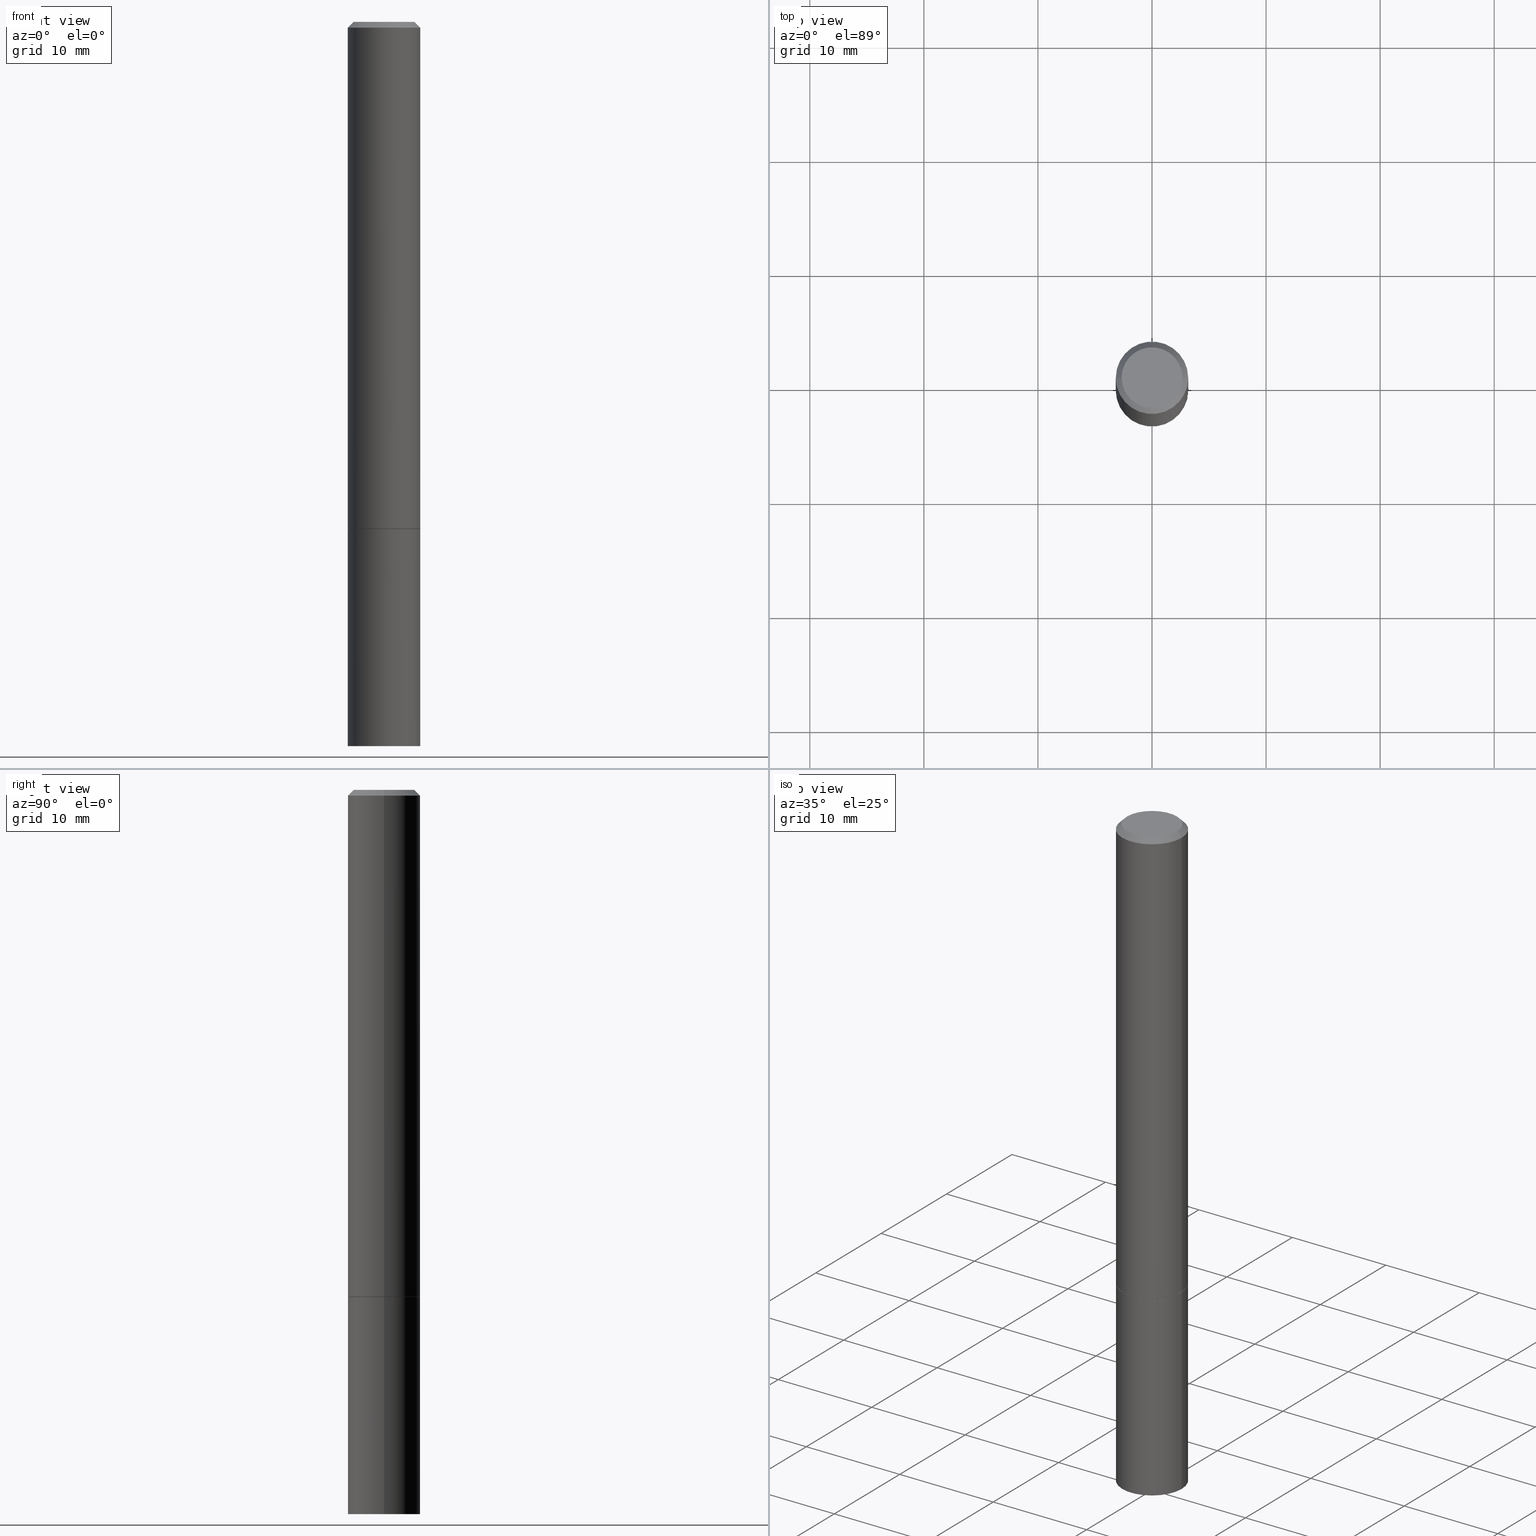
[diagram: canonical four-view strip — front | top / right | iso, engineering-drawing reading convention]
A machine part, canonical four-view strip (front | top / right | iso — engineering-drawing reading convention). The complete STEP part file that produces these views, byte-faithful:
ISO-10303-21;
HEADER;
FILE_DESCRIPTION (( 'STEP AP203' ),
    '1' );
FILE_NAME ('30531.STEP',
    '2024-02-27T12:44:12',
    ( '' ),
    ( '' ),
    'SwSTEP 2.0',
    'SolidWorks 2023',
    '' );
FILE_SCHEMA (( 'CONFIG_CONTROL_DESIGN' ));
ENDSEC;

DATA;
#1 = DIRECTION ( 'NONE',  ( -2.445468806185136597E-29, 3.491481338843145583E-15, 1.000000000000000000 ) ) ;
#2 = CARTESIAN_POINT ( 'NONE',  ( 4.890937612370283668E-31, -6.982962677686305168E-17, -0.02000000000000004205 ) ) ;
#3 = EDGE_CURVE ( 'NONE', #115, #113, #151, .T. ) ;
#4 = CALENDAR_DATE ( 2024, 27, 2 ) ;
#5 = EDGE_LOOP ( 'NONE', ( #9, #150, #288, #257 ) ) ;
#6 = AXIS2_PLACEMENT_3D ( 'NONE', #2, #294, #53 ) ;
#7 = LINE ( 'NONE', #84, #292 ) ;
#8 = APPROVAL_STATUS ( 'not_yet_approved' ) ;
#9 = ORIENTED_EDGE ( 'NONE', *, *, #74, .F. ) ;
#10 = FACE_OUTER_BOUND ( 'NONE', #170, .T. ) ;
#11 = DIRECTION ( 'NONE',  ( 1.000000000000000000, -6.982962677686262766E-15, 0.000000000000000000 ) ) ;
#12 = EDGE_LOOP ( 'NONE', ( #56, #39, #87, #34 ) ) ;
#13 = DIRECTION ( 'NONE',  ( 2.438088387897960049E-29, -3.491481338843145188E-15, -1.000000000000000000 ) ) ;
#14 = FACE_OUTER_BOUND ( 'NONE', #258, .T. ) ;
#15 = AXIS2_PLACEMENT_3D ( 'NONE', #36, #265, #140 ) ;
#16 = APPROVAL_PERSON_ORGANIZATION ( #246, #266, #184 ) ;
#17 = DIRECTION ( 'NONE',  ( 1.000000000000000000, -6.982962677686266711E-15, 4.876176775795935793E-29 ) ) ;
#18 = DIRECTION ( 'NONE',  ( -2.445468806185136597E-29, 3.491481338843145583E-15, 1.000000000000000000 ) ) ;
#19 = CONICAL_SURFACE ( 'NONE', #119, 0.1249999999999997780, 0.7853981633974471688 ) ;
#20 = FACE_OUTER_BOUND ( 'NONE', #5, .T. ) ;
#21 = CARTESIAN_POINT ( 'NONE',  ( 4.890937612370283668E-31, -6.982962677686305168E-17, -0.02000000000000004205 ) ) ;
#22 = VERTEX_POINT ( 'NONE', #287 ) ;
#23 = AXIS2_PLACEMENT_3D ( 'NONE', #199, #28, #55 ) ;
#24 = VERTEX_POINT ( 'NONE', #145 ) ;
#25 = DATE_AND_TIME ( #282, #178 ) ;
#26 = CONICAL_SURFACE ( 'NONE', #6, 0.1249999999999997780, 0.7853981633974471688 ) ;
#27 = DIRECTION ( 'NONE',  ( 1.000000000000000000, -6.982962677686270655E-15, 0.000000000000000000 ) ) ;
#28 = DIRECTION ( 'NONE',  ( 2.438088387897960049E-29, -3.491481338843145188E-15, -1.000000000000000000 ) ) ;
#29 = FACE_OUTER_BOUND ( 'NONE', #12, .T. ) ;
#30 = VERTEX_POINT ( 'NONE', #197 ) ;
#31 = CC_DESIGN_PERSON_AND_ORGANIZATION_ASSIGNMENT ( #274, #131, ( #296 ) ) ;
#32 = ORIENTED_EDGE ( 'NONE', *, *, #162, .T. ) ;
#33 = ORIENTED_EDGE ( 'NONE', *, *, #249, .F. ) ;
#34 = ORIENTED_EDGE ( 'NONE', *, *, #101, .T. ) ;
#35 = AXIS2_PLACEMENT_3D ( 'NONE', #146, #169, #11 ) ;
#36 = CARTESIAN_POINT ( 'NONE',  ( 0.000000000000000000, 0.000000000000000000, 0.000000000000000000 ) ) ;
#37 = LOCAL_TIME ( 7, 44, 12.00000000000000000, #102 ) ;
#38 = DIRECTION ( 'NONE',  ( -2.445468806185136597E-29, 3.491481338843145583E-15, 1.000000000000000000 ) ) ;
#39 = ORIENTED_EDGE ( 'NONE', *, *, #152, .F. ) ;
#40 = DIRECTION ( 'NONE',  ( -2.445468806185136597E-29, 3.491481338843145583E-15, 1.000000000000000000 ) ) ;
#41 = PRODUCT_DEFINITION_SHAPE ( 'NONE', 'NONE',  #123 ) ;
#42 = AXIS2_PLACEMENT_3D ( 'NONE', #21, #18, #136 ) ;
#43 = AXIS2_PLACEMENT_3D ( 'NONE', #117, #342, #225 ) ;
#44 = FACE_OUTER_BOUND ( 'NONE', #268, .T. ) ;
#45 = APPROVAL_DATE_TIME ( #298, #209 ) ;
#46 = DIRECTION ( 'NONE',  ( -2.438088387897960049E-29, 3.491481338843145188E-15, 1.000000000000000000 ) ) ;
#47 = EDGE_CURVE ( 'NONE', #24, #242, #167, .T. ) ;
#48 = CALENDAR_DATE ( 2024, 27, 2 ) ;
#49 = ADVANCED_FACE ( 'NONE', ( #10 ), #142, .F. ) ;
#50 = LOCAL_TIME ( 7, 44, 12.00000000000000000, #143 ) ;
#51 = APPROVAL_DATE_TIME ( #188, #266 ) ;
#52 = PERSON ( 'UNSPECIFIED', 'UNSPECIFIED', 'UNSPECIFIED', ('UNSPECIFIED'), ('UNSPECIFIED'), ('UNSPECIFIED') ) ;
#53 = DIRECTION ( 'NONE',  ( -1.000000000000000000, 6.982962677686266711E-15, 0.000000000000000000 ) ) ;
#54 = MECHANICAL_CONTEXT ( 'NONE', #104, 'mechanical' ) ;
#55 = DIRECTION ( 'NONE',  ( -1.000000000000000000, 6.982962677686265922E-15, -4.876176775795935793E-29 ) ) ;
#56 = ORIENTED_EDGE ( 'NONE', *, *, #3, .F. ) ;
#57 = CC_DESIGN_SECURITY_CLASSIFICATION ( #70, ( #296 ) ) ;
#58 = DIRECTION ( 'NONE',  ( -2.445468806185136877E-29, 3.491481338843145188E-15, 1.000000000000000000 ) ) ;
#59 = EDGE_LOOP ( 'NONE', ( #313, #193, #348, #215 ) ) ;
#60 = DIRECTION ( 'NONE',  ( -2.445468806185136597E-29, 3.491481338843145583E-15, 1.000000000000000000 ) ) ;
#61 = CARTESIAN_POINT ( 'NONE',  ( 0.1250000000000000000, -9.601573681818648281E-15, -2.500000000000000000 ) ) ;
#62 = EDGE_CURVE ( 'NONE', #359, #113, #7, .T. ) ;
#63 = DIRECTION ( 'NONE',  ( -2.445468806185136597E-29, 3.491481338843145583E-15, 1.000000000000000000 ) ) ;
#64 = CC_DESIGN_APPROVAL ( #266, ( #70 ) ) ;
#65 = CC_DESIGN_DATE_AND_TIME_ASSIGNMENT ( #89, #175, ( #123 ) ) ;
#66 = CALENDAR_DATE ( 2024, 27, 2 ) ;
#67 = PRODUCT ( '30531', '30531', '', ( #54 ) ) ;
#68 = FACE_OUTER_BOUND ( 'NONE', #85, .T. ) ;
#69 = AXIS2_PLACEMENT_3D ( 'NONE', #366, #293, #290 ) ;
#70 = SECURITY_CLASSIFICATION ( '', '', #239 ) ;
#71 = ORIENTED_EDGE ( 'NONE', *, *, #138, .F. ) ;
#72 = CARTESIAN_POINT ( 'NONE',  ( 4.279570410823989044E-29, -6.110092342975505460E-15, -1.750000000000000222 ) ) ;
#73 = CARTESIAN_POINT ( 'NONE',  ( 0.000000000000000000, 0.000000000000000000, 0.000000000000000000 ) ) ;
#74 = EDGE_CURVE ( 'NONE', #22, #120, #114, .T. ) ;
#75 = APPROVAL_STATUS ( 'not_yet_approved' ) ;
#76 = ORIENTED_EDGE ( 'NONE', *, *, #272, .F. ) ;
#77 = AXIS2_PLACEMENT_3D ( 'NONE', #204, #63, #27 ) ;
#78 = ORIENTED_EDGE ( 'NONE', *, *, #181, .F. ) ;
#79 = CARTESIAN_POINT ( 'NONE',  ( 0.000000000000000000, 0.000000000000000000, 0.000000000000000000 ) ) ;
#80 = CALENDAR_DATE ( 2024, 27, 2 ) ;
#81 = ORIENTED_EDGE ( 'NONE', *, *, #144, .T. ) ;
#82 = ORIENTED_EDGE ( 'NONE', *, *, #135, .T. ) ;
#83 = DIRECTION ( 'NONE',  ( -2.445468806185136597E-29, 3.491481338843145583E-15, 1.000000000000000000 ) ) ;
#84 = CARTESIAN_POINT ( 'NONE',  ( 0.1249999999999999029, -8.728703347107826486E-16, 6.095220969744914837E-30 ) ) ;
#85 = EDGE_LOOP ( 'NONE', ( #310, #124 ) ) ;
#86 = VECTOR ( 'NONE', #322, 39.37007874015748854 ) ;
#87 = ORIENTED_EDGE ( 'NONE', *, *, #47, .T. ) ;
#88 = CARTESIAN_POINT ( 'NONE',  ( 6.113672015462842613E-29, -8.728703347107864943E-15, -2.500000000000000000 ) ) ;
#89 = DATE_AND_TIME ( #4, #50 ) ;
#90 = DIRECTION ( 'NONE',  ( 2.438088387897960049E-29, -3.491481338843145188E-15, -1.000000000000000000 ) ) ;
#91 = ORIENTED_EDGE ( 'NONE', *, *, #351, .F. ) ;
#92 = DIRECTION ( 'NONE',  ( 1.000000000000000000, -6.982962677686270655E-15, 0.000000000000000000 ) ) ;
#93 = CARTESIAN_POINT ( 'NONE',  ( 4.277124942017804562E-29, -6.106600861636661664E-15, -1.749000000000000110 ) ) ;
#94 = CARTESIAN_POINT ( 'NONE',  ( 7.332110811570564466E-16, 0.1049999999999997879, -3.666055405785295545E-16 ) ) ;
#95 = APPLICATION_PROTOCOL_DEFINITION ( 'international standard', 'config_control_design', 1994, #104 ) ;
#96 = ADVANCED_FACE ( 'NONE', ( #171 ), #229, .T. ) ;
#97 = AXIS2_PLACEMENT_3D ( 'NONE', #255, #157, #276 ) ;
#98 = CARTESIAN_POINT ( 'NONE',  ( 0.1250000000000000000, -6.979471196347445792E-15, -1.749000000000000110 ) ) ;
#99 = ADVANCED_FACE ( 'NONE', ( #29 ), #26, .T. ) ;
#100 = CARTESIAN_POINT ( 'NONE',  ( -0.1250000000000000000, 8.881784197001252323E-16, -6.148668862818632227E-30 ) ) ;
#101 = EDGE_CURVE ( 'NONE', #242, #113, #212, .T. ) ;
#102 = COORDINATED_UNIVERSAL_TIME_OFFSET ( 5, 0, .BEHIND. ) ;
#103 = DIRECTION ( 'NONE',  ( 1.000000000000000000, -6.982962677686270655E-15, 0.000000000000000000 ) ) ;
#104 = APPLICATION_CONTEXT ( 'configuration controlled 3d designs of mechanical parts and assemblies' ) ;
#105 = CIRCLE ( 'NONE', #77, 0.1250000000000000000 ) ;
#106 = COORDINATED_UNIVERSAL_TIME_OFFSET ( 5, 0, .BEHIND. ) ;
#107 = ORGANIZATION ( 'UNSPECIFIED', 'UNSPECIFIED', '' ) ;
#108 = PERSON_AND_ORGANIZATION_ROLE ( 'classification_officer' ) ;
#109 = APPROVAL_ROLE ( '' ) ;
#110 = AXIS2_PLACEMENT_3D ( 'NONE', #132, #347, #103 ) ;
#111 = ORIENTED_EDGE ( 'NONE', *, *, #138, .T. ) ;
#112 = CARTESIAN_POINT ( 'NONE',  ( 0.1250000000000000000, -8.728703347107833388E-16, 6.095220969744919741E-30 ) ) ;
#113 = VERTEX_POINT ( 'NONE', #230 ) ;
#114 = LINE ( 'NONE', #127, #86 ) ;
#115 = VERTEX_POINT ( 'NONE', #284 ) ;
#116 = CARTESIAN_POINT ( 'NONE',  ( 8.728703347108443769E-16, 0.1249999999999912709, -2.500000000000000444 ) ) ;
#117 = CARTESIAN_POINT ( 'NONE',  ( 4.890937612370283668E-31, -6.982962677686305168E-17, -0.02000000000000004205 ) ) ;
#118 = CLOSED_SHELL ( 'NONE', ( #363, #96, #317, #99, #148, #356, #345, #49 ) ) ;
#119 = AXIS2_PLACEMENT_3D ( 'NONE', #330, #153, #237 ) ;
#120 = VERTEX_POINT ( 'NONE', #147 ) ;
#121 = ORIENTED_EDGE ( 'NONE', *, *, #272, .T. ) ;
#122 = APPROVAL_ROLE ( '' ) ;
#123 = PRODUCT_DEFINITION ( 'UNKNOWN', '', #296, #216 ) ;
#124 = ORIENTED_EDGE ( 'NONE', *, *, #200, .F. ) ;
#125 = LINE ( 'NONE', #112, #221 ) ;
#126 = ORIENTED_EDGE ( 'NONE', *, *, #101, .F. ) ;
#127 = CARTESIAN_POINT ( 'NONE',  ( -0.1239999999999999991, -5.229019350632981236E-15, -1.750000000000000222 ) ) ;
#128 = APPROVAL_PERSON_ORGANIZATION ( #202, #209, #122 ) ;
#129 = CARTESIAN_POINT ( 'NONE',  ( 4.279570410823989044E-29, -6.110092342975505460E-15, -1.750000000000000222 ) ) ;
#130 = LENGTH_MEASURE_WITH_UNIT ( LENGTH_MEASURE( 0.02539999999999999897 ), #275 );
#131 = PERSON_AND_ORGANIZATION_ROLE ( 'design_supplier' ) ;
#132 = CARTESIAN_POINT ( 'NONE',  ( 4.279570410823989044E-29, -6.110092342975505460E-15, -1.750000000000000222 ) ) ;
#133 = PERSON_AND_ORGANIZATION ( #52, #107 ) ;
#134 = CONICAL_SURFACE ( 'NONE', #192, 0.1239999999999999991, 0.7853981633974141952 ) ;
#135 = EDGE_CURVE ( 'NONE', #137, #243, #168, .T. ) ;
#136 = DIRECTION ( 'NONE',  ( 1.000000000000000000, -6.982962677686266711E-15, 0.000000000000000000 ) ) ;
#137 = VERTEX_POINT ( 'NONE', #320 ) ;
#138 = EDGE_CURVE ( 'NONE', #243, #137, #154, .T. ) ;
#139 = APPROVAL_DATE_TIME ( #25, #334 ) ;
#140 = DIRECTION ( 'NONE',  ( 1.000000000000000000, -6.982962677686266711E-15, 4.876176775795935793E-29 ) ) ;
#141 = CARTESIAN_POINT ( 'NONE',  ( -0.1249999999999999029, 8.881784197001245421E-16, -6.148668862818627323E-30 ) ) ;
#142 = PLANE ( 'NONE',  #326 ) ;
#143 = COORDINATED_UNIVERSAL_TIME_OFFSET ( 5, 0, .BEHIND. ) ;
#144 = EDGE_CURVE ( 'NONE', #120, #359, #105, .T. ) ;
#145 = CARTESIAN_POINT ( 'NONE',  ( -0.1049999999999997879, 7.681258945454876027E-16, -5.249639473182156767E-30 ) ) ;
#146 = CARTESIAN_POINT ( 'NONE',  ( 4.279570410823989044E-29, -6.110092342975505460E-15, -1.750000000000000222 ) ) ;
#147 = CARTESIAN_POINT ( 'NONE',  ( -0.1250000000000000278, -2.200036824506634488E-15, -1.749000000000000110 ) ) ;
#148 = ADVANCED_FACE ( 'NONE', ( #176 ), #291, .T. ) ;
#149 = DIRECTION ( 'NONE',  ( 1.000000000000000000, -6.982962677686270655E-15, 0.000000000000000000 ) ) ;
#150 = ORIENTED_EDGE ( 'NONE', *, *, #200, .T. ) ;
#151 = LINE ( 'NONE', #223, #312 ) ;
#152 = EDGE_CURVE ( 'NONE', #24, #115, #262, .T. ) ;
#153 = DIRECTION ( 'NONE',  ( 2.445468806185136597E-29, -3.491481338843145583E-15, -1.000000000000000000 ) ) ;
#154 = CIRCLE ( 'NONE', #235, 0.1250000000000000000 ) ;
#155 = CYLINDRICAL_SURFACE ( 'NONE', #165, 0.1250000000000000000 ) ;
#156 = PERSON_AND_ORGANIZATION ( #52, #107 ) ;
#157 = DIRECTION ( 'NONE',  ( -2.445468806185136597E-29, 3.491481338843145583E-15, 1.000000000000000000 ) ) ;
#158 = CARTESIAN_POINT ( 'NONE',  ( 0.000000000000000000, 0.000000000000000000, 0.000000000000000000 ) ) ;
#159 = CIRCLE ( 'NONE', #335, 0.1250000000000000000 ) ;
#160 = APPROVAL_PERSON_ORGANIZATION ( #302, #334, #109 ) ;
#161 = APPLICATION_PROTOCOL_DEFINITION ( 'international standard', 'config_control_design', 1994, #194 ) ;
#162 = EDGE_CURVE ( 'NONE', #113, #242, #245, .T. ) ;
#163 = ORIENTED_EDGE ( 'NONE', *, *, #206, .T. ) ;
#164 = APPROVAL_STATUS ( 'not_yet_approved' ) ;
#165 = AXIS2_PLACEMENT_3D ( 'NONE', #158, #325, #328 ) ;
#166 = CARTESIAN_POINT ( 'NONE',  ( 4.279570410823989044E-29, -6.110092342975505460E-15, -1.750000000000000222 ) ) ;
#167 = LINE ( 'NONE', #261, #360 ) ;
#168 = CIRCLE ( 'NONE', #278, 0.1250000000000000000 ) ;
#169 = DIRECTION ( 'NONE',  ( -2.445468806185136597E-29, 3.491481338843145583E-15, 1.000000000000000000 ) ) ;
#170 = EDGE_LOOP ( 'NONE', ( #316, #259 ) ) ;
#171 = FACE_OUTER_BOUND ( 'NONE', #59, .T. ) ;
#172 = PERSON_AND_ORGANIZATION_ROLE ( 'creator' ) ;
#173 = EDGE_LOOP ( 'NONE', ( #78, #81, #319, #126 ) ) ;
#174 = CARTESIAN_POINT ( 'NONE',  ( 4.279570410823989044E-29, -6.110092342975505460E-15, -1.750000000000000222 ) ) ;
#175 = DATE_TIME_ROLE ( 'creation_date' ) ;
#176 = FACE_OUTER_BOUND ( 'NONE', #173, .T. ) ;
#177 = AXIS2_PLACEMENT_3D ( 'NONE', #93, #38, #149 ) ;
#178 = LOCAL_TIME ( 7, 44, 12.00000000000000000, #220 ) ;
#179 = LINE ( 'NONE', #269, #327 ) ;
#180 = DIRECTION ( 'NONE',  ( 1.000000000000000000, -6.982962677686270655E-15, 0.000000000000000000 ) ) ;
#181 = EDGE_CURVE ( 'NONE', #120, #242, #307, .T. ) ;
#182 = EDGE_CURVE ( 'NONE', #353, #30, #159, .T. ) ;
#183 = DIRECTION ( 'NONE',  ( -2.445468806185136877E-29, 3.491481338843145188E-15, 1.000000000000000000 ) ) ;
#184 = APPROVAL_ROLE ( '' ) ;
#185 = DIMENSIONAL_EXPONENTS ( 1.000000000000000000, 0.000000000000000000, 0.000000000000000000, 0.000000000000000000, 0.000000000000000000, 0.000000000000000000, 0.000000000000000000 ) ;
#186 = DIRECTION ( 'NONE',  ( 1.000000000000000000, 0.000000000000000000, 0.000000000000000000 ) ) ;
#187 = PRODUCT_RELATED_PRODUCT_CATEGORY ( 'detail', '', ( #67 ) ) ;
#188 = DATE_AND_TIME ( #80, #198 ) ;
#189 = DIRECTION ( 'NONE',  ( -0.7071067811865466846, 2.468850131082247989E-15, -0.7071067811865483499 ) ) ;
#190 = DIRECTION ( 'NONE',  ( 0.000000000000000000, 0.000000000000000000, 1.000000000000000000 ) ) ;
#191 = CIRCLE ( 'NONE', #306, 0.1239999999999999991 ) ;
#192 = AXIS2_PLACEMENT_3D ( 'NONE', #72, #271, #180 ) ;
#193 = ORIENTED_EDGE ( 'NONE', *, *, #181, .T. ) ;
#194 = APPLICATION_CONTEXT ( 'configuration controlled 3d designs of mechanical parts and assemblies' ) ;
#195 = CC_DESIGN_PERSON_AND_ORGANIZATION_ASSIGNMENT ( #286, #172, ( #123 ) ) ;
#196 = DIRECTION ( 'NONE',  ( 1.000000000000000000, -6.982962677686262766E-15, 0.000000000000000000 ) ) ;
#197 = CARTESIAN_POINT ( 'NONE',  ( -0.1250000000000000000, -6.531219425341559180E-15, -1.750000000000000222 ) ) ;
#198 = LOCAL_TIME ( 7, 44, 12.00000000000000000, #106 ) ;
#199 = CARTESIAN_POINT ( 'NONE',  ( 8.728703347108260359E-16, 0.1249999999999938799, -1.750000000000000666 ) ) ;
#200 = EDGE_CURVE ( 'NONE', #22, #289, #191, .T. ) ;
#201 = DIRECTION ( 'NONE',  ( -2.445468806185136597E-29, 3.491481338843145583E-15, 1.000000000000000000 ) ) ;
#202 = PERSON_AND_ORGANIZATION ( #52, #107 ) ;
#203 = DIRECTION ( 'NONE',  ( -1.000000000000000000, 6.982962677686265922E-15, -4.876176775795935793E-29 ) ) ;
#204 = CARTESIAN_POINT ( 'NONE',  ( 4.277124942017804562E-29, -6.106600861636661664E-15, -1.749000000000000110 ) ) ;
#205 = DIRECTION ( 'NONE',  ( -1.000000000000000000, 6.982962677686265922E-15, -4.876176775795935793E-29 ) ) ;
#206 = EDGE_CURVE ( 'NONE', #30, #353, #341, .T. ) ;
#207 = DIRECTION ( 'NONE',  ( 0.7071067811865232589, -2.468850131082003836E-15, 0.7071067811865715536 ) ) ;
#208 = AXIS2_PLACEMENT_3D ( 'NONE', #129, #46, #299 ) ;
#209 = APPROVAL ( #8, 'UNSPECIFIED' ) ;
#210 = CYLINDRICAL_SURFACE ( 'NONE', #285, 0.1250000000000000000 ) ;
#211 = CC_DESIGN_PERSON_AND_ORGANIZATION_ASSIGNMENT ( #133, #247, ( #67 ) ) ;
#212 = CIRCLE ( 'NONE', #43, 0.1249999999999997780 ) ;
#213 = ADVANCED_FACE ( 'NONE', ( #260 ), #321, .F. ) ;
#214 = FACE_OUTER_BOUND ( 'NONE', #252, .T. ) ;
#215 = ORIENTED_EDGE ( 'NONE', *, *, #62, .F. ) ;
#216 = DESIGN_CONTEXT ( 'detailed design', #194, 'design' ) ;
#217 = ORIENTED_EDGE ( 'NONE', *, *, #331, .F. ) ;
#218 =( GEOMETRIC_REPRESENTATION_CONTEXT ( 3 ) GLOBAL_UNCERTAINTY_ASSIGNED_CONTEXT ( ( #279 ) ) GLOBAL_UNIT_ASSIGNED_CONTEXT ( ( #277, #354, #350 ) ) REPRESENTATION_CONTEXT ( 'NONE', 'WORKASPACE' ) );
#219 = MANIFOLD_SOLID_BREP ( 'Body-Move/Copy2[1]', #364 ) ;
#220 = COORDINATED_UNIVERSAL_TIME_OFFSET ( 5, 0, .BEHIND. ) ;
#221 = VECTOR ( 'NONE', #338, 39.37007874015748143 ) ;
#222 = ORIENTED_EDGE ( 'NONE', *, *, #135, .F. ) ;
#223 = CARTESIAN_POINT ( 'NONE',  ( 0.1249999999999997780, -9.273918764983029686E-16, -0.02000000000000004205 ) ) ;
#224 = CARTESIAN_POINT ( 'NONE',  ( 4.279570410823989044E-29, -6.110092342975505460E-15, -1.750000000000000222 ) ) ;
#225 = DIRECTION ( 'NONE',  ( 1.000000000000000000, -6.982962677686266711E-15, 0.000000000000000000 ) ) ;
#226 = AXIS2_PLACEMENT_3D ( 'NONE', #116, #90, #203 ) ;
#227 = VECTOR ( 'NONE', #183, 39.37007874015748143 ) ;
#228 = ORIENTED_EDGE ( 'NONE', *, *, #74, .T. ) ;
#229 = CYLINDRICAL_SURFACE ( 'NONE', #280, 0.1249999999999999029 ) ;
#230 = CARTESIAN_POINT ( 'NONE',  ( 0.1249999999999997780, -9.273918764983029686E-16, -0.02000000000000004205 ) ) ;
#231 = CARTESIAN_POINT ( 'NONE',  ( -0.1249999999999997780, 8.030407079339186601E-16, -0.02000000000000004205 ) ) ;
#232 = EDGE_LOOP ( 'NONE', ( #250, #163 ) ) ;
#233 = CARTESIAN_POINT ( 'NONE',  ( 0.000000000000000000, 0.000000000000000000, 0.000000000000000000 ) ) ;
#234 = ADVANCED_BREP_SHAPE_REPRESENTATION ( '30531', ( #219, #343, #349 ), #218 ) ;
#235 = AXIS2_PLACEMENT_3D ( 'NONE', #346, #60, #315 ) ;
#236 = FACE_OUTER_BOUND ( 'NONE', #332, .T. ) ;
#237 = DIRECTION ( 'NONE',  ( -1.000000000000000000, 6.982962677686266711E-15, 0.000000000000000000 ) ) ;
#238 = ADVANCED_FACE ( 'NONE', ( #314 ), #264, .T. ) ;
#239 = SECURITY_CLASSIFICATION_LEVEL ( 'unclassified' ) ;
#240 = CIRCLE ( 'NONE', #177, 0.1250000000000000000 ) ;
#241 = SHAPE_DEFINITION_REPRESENTATION ( #41, #234 ) ;
#242 = VERTEX_POINT ( 'NONE', #231 ) ;
#243 = VERTEX_POINT ( 'NONE', #61 ) ;
#244 = VECTOR ( 'NONE', #256, 39.37007874015748143 ) ;
#245 = CIRCLE ( 'NONE', #42, 0.1249999999999997780 ) ;
#246 = PERSON_AND_ORGANIZATION ( #52, #107 ) ;
#247 = PERSON_AND_ORGANIZATION_ROLE ( 'design_owner' ) ;
#248 = DATE_AND_TIME ( #48, #251 ) ;
#249 = EDGE_CURVE ( 'NONE', #115, #24, #355, .T. ) ;
#250 = ORIENTED_EDGE ( 'NONE', *, *, #182, .T. ) ;
#251 = LOCAL_TIME ( 7, 44, 12.00000000000000000, #303 ) ;
#252 = EDGE_LOOP ( 'NONE', ( #33, #365, #32, #267 ) ) ;
#253 = DIRECTION ( 'NONE',  ( -2.445468806185136597E-29, 3.491481338843145583E-15, 1.000000000000000000 ) ) ;
#254 = ORIENTED_EDGE ( 'NONE', *, *, #305, .T. ) ;
#255 = CARTESIAN_POINT ( 'NONE',  ( 0.000000000000000000, 0.000000000000000000, 0.000000000000000000 ) ) ;
#256 = DIRECTION ( 'NONE',  ( -2.445468806185136877E-29, 3.491481338843145188E-15, 1.000000000000000000 ) ) ;
#257 = ORIENTED_EDGE ( 'NONE', *, *, #144, .F. ) ;
#258 = EDGE_LOOP ( 'NONE', ( #111, #311, #337, #76 ) ) ;
#259 = ORIENTED_EDGE ( 'NONE', *, *, #249, .T. ) ;
#260 = FACE_OUTER_BOUND ( 'NONE', #232, .T. ) ;
#261 = CARTESIAN_POINT ( 'NONE',  ( -0.1249999999999997780, 8.030407079339186601E-16, -0.02000000000000004205 ) ) ;
#262 = CIRCLE ( 'NONE', #97, 0.1049999999999997879 ) ;
#263 = EDGE_CURVE ( 'NONE', #359, #120, #240, .T. ) ;
#264 = PLANE ( 'NONE',  #226 ) ;
#265 = DIRECTION ( 'NONE',  ( -2.445468806185136597E-29, 3.491481338843145583E-15, 1.000000000000000000 ) ) ;
#266 = APPROVAL ( #75, 'UNSPECIFIED' ) ;
#267 = ORIENTED_EDGE ( 'NONE', *, *, #47, .F. ) ;
#268 = EDGE_LOOP ( 'NONE', ( #217, #82, #121, #283 ) ) ;
#269 = CARTESIAN_POINT ( 'NONE',  ( 0.1239999999999999991, -6.975979715008602784E-15, -1.750000000000000222 ) ) ;
#270 = PERSON_AND_ORGANIZATION_ROLE ( 'creator' ) ;
#271 = DIRECTION ( 'NONE',  ( -2.445468806185136597E-29, 3.491481338843145583E-15, 1.000000000000000000 ) ) ;
#272 = EDGE_CURVE ( 'NONE', #243, #353, #125, .T. ) ;
#273 = CARTESIAN_POINT ( 'NONE',  ( 0.1250000000000000000, -6.982962677686288010E-15, -1.750000000000000222 ) ) ;
#274 = PERSON_AND_ORGANIZATION ( #52, #107 ) ;
#275 =( LENGTH_UNIT ( ) NAMED_UNIT ( * ) SI_UNIT ( $, .METRE. ) );
#276 = DIRECTION ( 'NONE',  ( 1.000000000000000000, -6.982962677686265922E-15, 4.876176775795935232E-29 ) ) ;
#277 =( CONVERSION_BASED_UNIT ( 'INCH', #130 ) LENGTH_UNIT ( ) NAMED_UNIT ( #185 ) );
#278 = AXIS2_PLACEMENT_3D ( 'NONE', #88, #201, #92 ) ;
#279 = UNCERTAINTY_MEASURE_WITH_UNIT (LENGTH_MEASURE( 1.000000000000000082E-05 ), #277, 'distance_accuracy_value', 'NONE');
#280 = AXIS2_PLACEMENT_3D ( 'NONE', #233, #304, #344 ) ;
#281 = AXIS2_PLACEMENT_3D ( 'NONE', #224, #83, #297 ) ;
#282 = CALENDAR_DATE ( 2024, 27, 2 ) ;
#283 = ORIENTED_EDGE ( 'NONE', *, *, #206, .F. ) ;
#284 = CARTESIAN_POINT ( 'NONE',  ( 0.1049999999999997879, -8.238720831321562839E-16, 5.444276250344140956E-30 ) ) ;
#285 = AXIS2_PLACEMENT_3D ( 'NONE', #73, #40, #17 ) ;
#286 = PERSON_AND_ORGANIZATION ( #52, #107 ) ;
#287 = CARTESIAN_POINT ( 'NONE',  ( -0.1239999999999999991, -5.223720896284758045E-15, -1.750000000000000222 ) ) ;
#288 = ORIENTED_EDGE ( 'NONE', *, *, #351, .T. ) ;
#289 = VERTEX_POINT ( 'NONE', #309 ) ;
#290 = DIRECTION ( 'NONE',  ( 1.000000000000000000, -6.982962677686265922E-15, 4.876176775795935232E-29 ) ) ;
#291 = CYLINDRICAL_SURFACE ( 'NONE', #15, 0.1249999999999999029 ) ;
#292 = VECTOR ( 'NONE', #58, 39.37007874015748143 ) ;
#293 = DIRECTION ( 'NONE',  ( -2.445468806185136597E-29, 3.491481338843145583E-15, 1.000000000000000000 ) ) ;
#294 = DIRECTION ( 'NONE',  ( 2.445468806185136597E-29, -3.491481338843145583E-15, -1.000000000000000000 ) ) ;
#295 = LINE ( 'NONE', #100, #227 ) ;
#296 = PRODUCT_DEFINITION_FORMATION_WITH_SPECIFIED_SOURCE ( 'ANY', '', #67, .NOT_KNOWN. ) ;
#297 = DIRECTION ( 'NONE',  ( 1.000000000000000000, -6.982962677686270655E-15, 0.000000000000000000 ) ) ;
#298 = DATE_AND_TIME ( #66, #37 ) ;
#299 = DIRECTION ( 'NONE',  ( 1.000000000000000000, -6.982962677686265922E-15, 4.876176775795935793E-29 ) ) ;
#300 = PLANE ( 'NONE',  #208 ) ;
#301 = CC_DESIGN_DATE_AND_TIME_ASSIGNMENT ( #248, #333, ( #70 ) ) ;
#302 = PERSON_AND_ORGANIZATION ( #52, #107 ) ;
#303 = COORDINATED_UNIVERSAL_TIME_OFFSET ( 5, 0, .BEHIND. ) ;
#304 = DIRECTION ( 'NONE',  ( -2.445468806185136597E-29, 3.491481338843145583E-15, 1.000000000000000000 ) ) ;
#305 = EDGE_CURVE ( 'NONE', #289, #22, #323, .T. ) ;
#306 = AXIS2_PLACEMENT_3D ( 'NONE', #166, #253, #318 ) ;
#307 = LINE ( 'NONE', #141, #244 ) ;
#308 = CC_DESIGN_PERSON_AND_ORGANIZATION_ASSIGNMENT ( #156, #270, ( #296 ) ) ;
#309 = CARTESIAN_POINT ( 'NONE',  ( 0.1239999999999999991, -6.975979715008602784E-15, -1.750000000000000222 ) ) ;
#310 = ORIENTED_EDGE ( 'NONE', *, *, #305, .F. ) ;
#311 = ORIENTED_EDGE ( 'NONE', *, *, #331, .T. ) ;
#312 = VECTOR ( 'NONE', #340, 39.37007874015748143 ) ;
#313 = ORIENTED_EDGE ( 'NONE', *, *, #263, .T. ) ;
#314 = FACE_OUTER_BOUND ( 'NONE', #339, .T. ) ;
#315 = DIRECTION ( 'NONE',  ( 1.000000000000000000, -6.982962677686270655E-15, 0.000000000000000000 ) ) ;
#316 = ORIENTED_EDGE ( 'NONE', *, *, #152, .T. ) ;
#317 = ADVANCED_FACE ( 'NONE', ( #214 ), #19, .T. ) ;
#318 = DIRECTION ( 'NONE',  ( 1.000000000000000000, -6.982962677686270655E-15, 0.000000000000000000 ) ) ;
#319 = ORIENTED_EDGE ( 'NONE', *, *, #62, .T. ) ;
#320 = CARTESIAN_POINT ( 'NONE',  ( -0.1250000000000000000, -6.531219425341559180E-15, -2.500000000000000000 ) ) ;
#321 = PLANE ( 'NONE',  #23 ) ;
#322 = DIRECTION ( 'NONE',  ( -0.7071067811865232589, 7.493145998870265808E-15, 0.7071067811865715536 ) ) ;
#323 = CIRCLE ( 'NONE', #281, 0.1239999999999999991 ) ;
#324 = CONICAL_SURFACE ( 'NONE', #110, 0.1239999999999999991, 0.7853981633974141952 ) ;
#325 = DIRECTION ( 'NONE',  ( -2.445468806185136597E-29, 3.491481338843145583E-15, 1.000000000000000000 ) ) ;
#326 = AXIS2_PLACEMENT_3D ( 'NONE', #94, #13, #205 ) ;
#327 = VECTOR ( 'NONE', #207, 39.37007874015748854 ) ;
#328 = DIRECTION ( 'NONE',  ( 1.000000000000000000, -6.982962677686266711E-15, 4.876176775795935793E-29 ) ) ;
#329 = ADVANCED_FACE ( 'NONE', ( #14 ), #210, .T. ) ;
#330 = CARTESIAN_POINT ( 'NONE',  ( 4.890937612370283668E-31, -6.982962677686305168E-17, -0.02000000000000004205 ) ) ;
#331 = EDGE_CURVE ( 'NONE', #137, #30, #295, .T. ) ;
#332 = EDGE_LOOP ( 'NONE', ( #254, #228, #357, #91 ) ) ;
#333 = DATE_TIME_ROLE ( 'classification_date' ) ;
#334 = APPROVAL ( #164, 'UNSPECIFIED' ) ;
#335 = AXIS2_PLACEMENT_3D ( 'NONE', #174, #1, #196 ) ;
#336 = CC_DESIGN_APPROVAL ( #209, ( #296 ) ) ;
#337 = ORIENTED_EDGE ( 'NONE', *, *, #182, .F. ) ;
#338 = DIRECTION ( 'NONE',  ( -2.445468806185136877E-29, 3.491481338843145188E-15, 1.000000000000000000 ) ) ;
#339 = EDGE_LOOP ( 'NONE', ( #71, #222 ) ) ;
#340 = DIRECTION ( 'NONE',  ( 0.7071067811865466846, -7.319954787623252890E-15, -0.7071067811865483499 ) ) ;
#341 = CIRCLE ( 'NONE', #35, 0.1250000000000000000 ) ;
#342 = DIRECTION ( 'NONE',  ( -2.445468806185136597E-29, 3.491481338843145583E-15, 1.000000000000000000 ) ) ;
#343 = MANIFOLD_SOLID_BREP ( 'Body-Move/Copy2[2]', #118 ) ;
#344 = DIRECTION ( 'NONE',  ( 1.000000000000000000, -6.982962677686266711E-15, 4.876176775795935793E-29 ) ) ;
#345 = ADVANCED_FACE ( 'NONE', ( #68 ), #300, .F. ) ;
#346 = CARTESIAN_POINT ( 'NONE',  ( 6.113672015462842613E-29, -8.728703347107864943E-15, -2.500000000000000000 ) ) ;
#347 = DIRECTION ( 'NONE',  ( -2.445468806185136597E-29, 3.491481338843145583E-15, 1.000000000000000000 ) ) ;
#348 = ORIENTED_EDGE ( 'NONE', *, *, #162, .F. ) ;
#349 = AXIS2_PLACEMENT_3D ( 'NONE', #79, #190, #186 ) ;
#350 =( NAMED_UNIT ( * ) SI_UNIT ( $, .STERADIAN. ) SOLID_ANGLE_UNIT ( ) );
#351 = EDGE_CURVE ( 'NONE', #289, #359, #179, .T. ) ;
#352 = ADVANCED_FACE ( 'NONE', ( #44 ), #155, .T. ) ;
#353 = VERTEX_POINT ( 'NONE', #273 ) ;
#354 =( NAMED_UNIT ( * ) PLANE_ANGLE_UNIT ( ) SI_UNIT ( $, .RADIAN. ) );
#355 = CIRCLE ( 'NONE', #69, 0.1049999999999997879 ) ;
#356 = ADVANCED_FACE ( 'NONE', ( #20 ), #134, .T. ) ;
#357 = ORIENTED_EDGE ( 'NONE', *, *, #263, .F. ) ;
#358 = PERSON_AND_ORGANIZATION ( #52, #107 ) ;
#359 = VERTEX_POINT ( 'NONE', #98 ) ;
#360 = VECTOR ( 'NONE', #189, 39.37007874015748143 ) ;
#361 = CC_DESIGN_APPROVAL ( #334, ( #123 ) ) ;
#362 = CC_DESIGN_PERSON_AND_ORGANIZATION_ASSIGNMENT ( #358, #108, ( #70 ) ) ;
#363 = ADVANCED_FACE ( 'NONE', ( #236 ), #324, .T. ) ;
#364 = CLOSED_SHELL ( 'NONE', ( #329, #238, #213, #352 ) ) ;
#365 = ORIENTED_EDGE ( 'NONE', *, *, #3, .T. ) ;
#366 = CARTESIAN_POINT ( 'NONE',  ( 0.000000000000000000, 0.000000000000000000, 0.000000000000000000 ) ) ;
ENDSEC;
END-ISO-10303-21;
